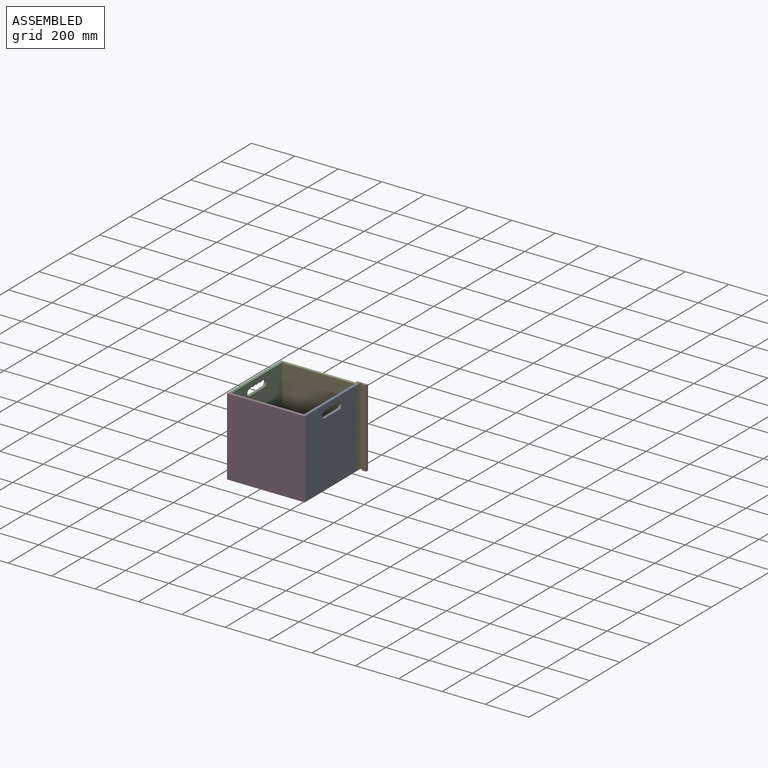
[diagram: assembled view]
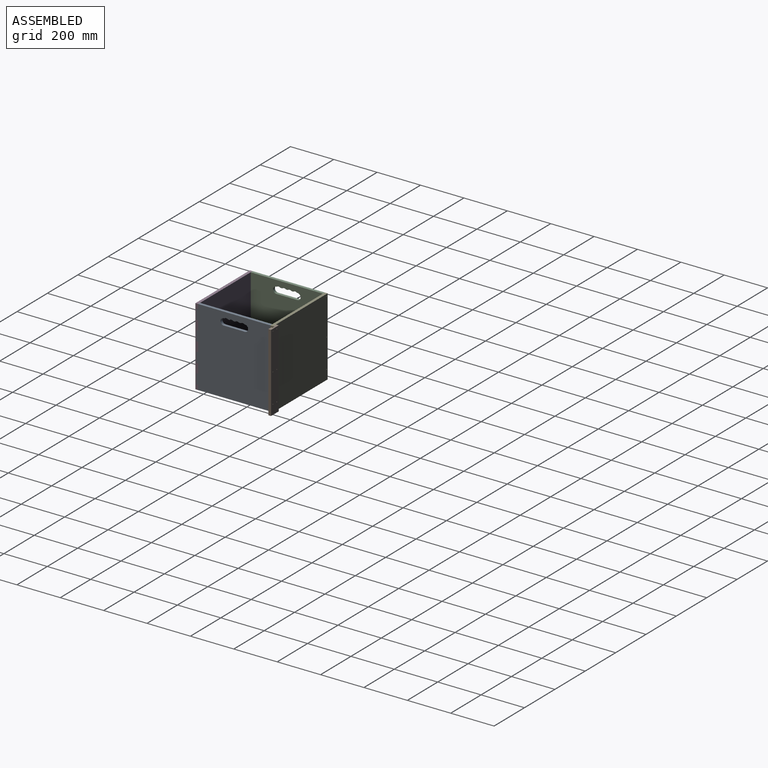
[diagram: assembled view, second angle]
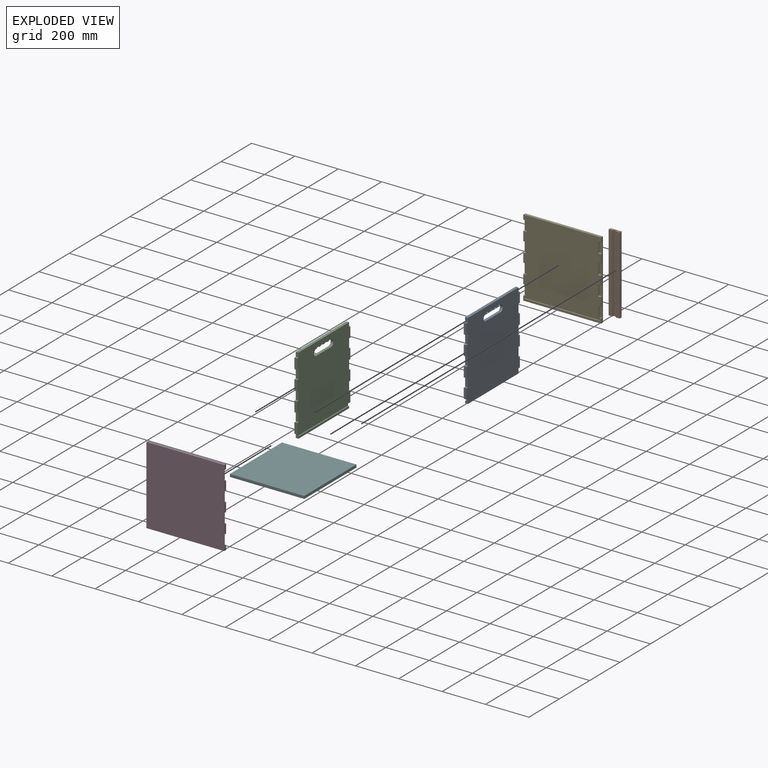
[diagram: exploded view]
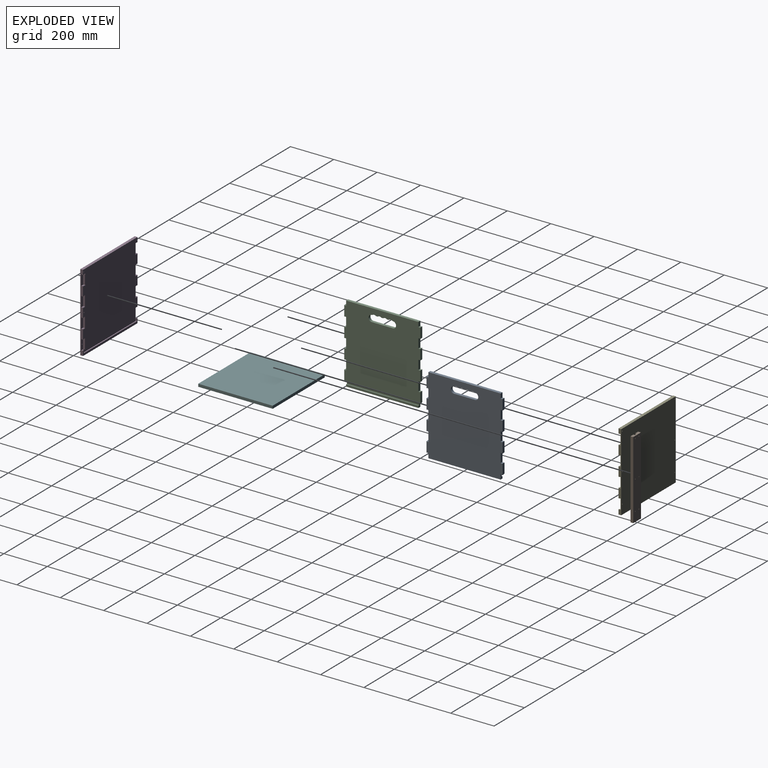
[diagram: exploded view, second angle]
ASSEMBLY  parts=6 mates=15
PART A: 70 faces, bbox 350.8x12.7x358.7 mm
  f0: plane 12.7x8.6mm, normal (0,0,-1), area 109.2mm2, adj f4,f5,f66,f69
  f1: plane 12.7x8.6mm, normal (0,0,-1), area 109.2mm2, adj f4,f5,f67,f68
  f2: plane 12.7x1.99mm, normal (0,0,-1), area 25.3mm2, adj f4,f5,f65,f67
  f3: plane 12.7x8.6mm, normal (0,0,-1), area 109.2mm2, adj f4,f5,f66,f68
  f4: plane 350.8x336.48mm, normal (0,-1,0), area 111596mm2, adj f0,f1,f2,f3,f6,f7,f12,f13
  f5: plane 358.7x350.8mm, normal (0,1,0), area 119010.6mm2, adj f0,f1,f2,f3,f6,f7,f8,f9
  f6: plane 47.65x12.7mm, normal (-1,0,0), area 599mm2, adj f4,f5,f8,f24,f60,f61
  f7: plane 47.65x12.7mm, normal (1,0,0), area 599mm2, adj f4,f5,f10,f46,f60,f61
  f8: plane 7.62x5.88mm, normal (0.16,0,-0.99), area 45.4mm2, adj f5,f6,f9,f61
  f9: cylinder r=2.6mm len=7.62mm, axis (0,-1,0), area 34.2mm2, adj f5,f8,f20,f61
  f10: plane 7.62x5.88mm, normal (-0.16,0,-0.99), area 45.4mm2, adj f5,f7,f11,f61
  f11: cylinder r=2.6mm len=7.62mm, axis (0,-1,0), area 34.2mm2, adj f5,f10,f44,f61
  f12: plane 333.02x12.7mm, normal (0,0,1), area 4229.3mm2, adj f4,f5,f13,f37
  f13: plane 19.37x12.7mm, normal (-1,0,0), area 246.1mm2, adj f4,f5,f12,f30
  f14: plane 47.65x12.7mm, normal (-1,0,0), area 605.2mm2, adj f4,f5,f23,f25
  f15: plane 38.75x12.7mm, normal (-1,0,0), area 492.1mm2, adj f4,f5,f31,f32
  f16: plane 47.65x12.7mm, normal (-1,0,0), area 605.2mm2, adj f4,f5,f28,f29
  f17: plane 38.75x12.7mm, normal (-1,0,0), area 492.1mm2, adj f4,f5,f33,f34
  f18: plane 47.65x12.7mm, normal (-1,0,0), area 605.2mm2, adj f4,f5,f26,f27
  f19: plane 38.75x12.7mm, normal (-1,0,0), area 492.1mm2, adj f4,f5,f35,f36
  f20: plane 19.37x12.7mm, normal (-1,0,0), area 196mm2, adj f5,f9,f21,f22,f59,f61
  f21: plane 333.02x12.7mm, normal (0,0,-1), area 4229.3mm2, adj f5,f20,f22,f44
  f22: plane 333.02x9.53mm, normal (0,-1,0), area 3172mm2, adj f20,f21,f44,f59
  f23: plane 12.7x5.88mm, normal (0.16,0,0.99), area 75.6mm2, adj f4,f5,f14,f30
  f24: plane 12.7x5.88mm, normal (0.16,0,0.99), area 75.6mm2, adj f4,f5,f6,f36
  f25: plane 12.7x5.88mm, normal (0.16,0,-0.99), area 75.6mm2, adj f4,f5,f14,f31
  f26: plane 12.7x5.88mm, normal (0.16,0,-0.99), area 75.6mm2, adj f4,f5,f18,f35
  f27: plane 12.7x5.88mm, normal (0.16,0,0.99), area 75.6mm2, adj f4,f5,f18,f34
  f28: plane 12.7x5.88mm, normal (0.16,0,-0.99), area 75.6mm2, adj f4,f5,f16,f33
  f29: plane 12.7x5.88mm, normal (0.16,0,0.99), area 75.6mm2, adj f4,f5,f16,f32
  f30: cylinder r=2.6mm len=12.7mm, axis (0,1,0), area 57.1mm2, adj f4,f5,f13,f23
  f31: cylinder r=2.6mm len=12.7mm, axis (0,-1,0), area 57.1mm2, adj f4,f5,f15,f25
  f32: cylinder r=2.6mm len=12.7mm, axis (0,-1,0), area 57.1mm2, adj f4,f5,f15,f29
  f33: cylinder r=2.6mm len=12.7mm, axis (0,-1,0), area 57.1mm2, adj f4,f5,f17,f28
  f34: cylinder r=2.6mm len=12.7mm, axis (0,1,0), area 57.1mm2, adj f4,f5,f17,f27
  f35: cylinder r=2.6mm len=12.7mm, axis (0,-1,0), area 57.1mm2, adj f4,f5,f19,f26
  f36: cylinder r=2.6mm len=12.7mm, axis (0,-1,0), area 57.1mm2, adj f4,f5,f19,f24
  f37: plane 19.37x12.7mm, normal (1,0,0), area 246.1mm2, adj f4,f5,f12,f52
  f38: plane 47.65x12.7mm, normal (1,0,0), area 605.2mm2, adj f4,f5,f45,f47
  f39: plane 38.75x12.7mm, normal (1,0,0), area 492.1mm2, adj f4,f5,f53,f54
  f40: plane 47.65x12.7mm, normal (1,0,0), area 605.2mm2, adj f4,f5,f50,f51
  f41: plane 38.75x12.7mm, normal (1,0,0), area 492.1mm2, adj f4,f5,f55,f56
  f42: plane 47.65x12.7mm, normal (1,0,0), area 605.2mm2, adj f4,f5,f48,f49
  f43: plane 38.75x12.7mm, normal (1,0,0), area 492.1mm2, adj f4,f5,f57,f58
  f44: plane 19.37x12.7mm, normal (1,0,0), area 196mm2, adj f5,f11,f21,f22,f59,f61
  f45: plane 12.7x5.88mm, normal (-0.16,0,0.99), area 75.6mm2, adj f4,f5,f38,f52
  f46: plane 12.7x5.88mm, normal (-0.16,0,0.99), area 75.6mm2, adj f4,f5,f7,f58
  f47: plane 12.7x5.88mm, normal (-0.16,0,-0.99), area 75.6mm2, adj f4,f5,f38,f53
  f48: plane 12.7x5.88mm, normal (-0.16,0,-0.99), area 75.6mm2, adj f4,f5,f42,f57
  f49: plane 12.7x5.88mm, normal (-0.16,0,0.99), area 75.6mm2, adj f4,f5,f42,f56
  f50: plane 12.7x5.88mm, normal (-0.16,0,-0.99), area 75.6mm2, adj f4,f5,f40,f55
  f51: plane 12.7x5.88mm, normal (-0.16,0,0.99), area 75.6mm2, adj f4,f5,f40,f54
  f52: cylinder r=2.6mm len=12.7mm, axis (0,1,0), area 57.1mm2, adj f4,f5,f37,f45
  f53: cylinder r=2.6mm len=12.7mm, axis (0,-1,0), area 57.1mm2, adj f4,f5,f39,f47
  f54: cylinder r=2.6mm len=12.7mm, axis (0,-1,0), area 57.1mm2, adj f4,f5,f39,f51
  f55: cylinder r=2.6mm len=12.7mm, axis (0,-1,0), area 57.1mm2, adj f4,f5,f41,f50
  f56: cylinder r=2.6mm len=12.7mm, axis (0,1,0), area 57.1mm2, adj f4,f5,f41,f49
  f57: cylinder r=2.6mm len=12.7mm, axis (0,-1,0), area 57.1mm2, adj f4,f5,f43,f48
  f58: cylinder r=2.6mm len=12.7mm, axis (0,-1,0), area 57.1mm2, adj f4,f5,f43,f46
  f59: plane 333.02x5.08mm, normal (0,0,1), area 1691.7mm2, adj f20,f22,f44,f61
  f60: plane 350.8x5.08mm, normal (0,0,-1), area 1782.1mm2, adj f4,f6,f7,f61
  f61: plane 350.8x12.7mm, normal (0,-1,0), area 4242.6mm2, adj f6,f7,f8,f9,f10,f11,f20,f44
  f62: plane 12.7x1.99mm, normal (0,0,-1), area 25.3mm2, adj f4,f5,f63,f69
  f63: cylinder r=15.01mm len=30.02mm, axis (0,-1,0), area 598.9mm2, adj f4,f5,f62,f64
  f64: plane 96.98x12.7mm, normal (0,0,1), area 1231.6mm2, adj f4,f5,f63,f65
  f65: cylinder r=15.01mm len=30.02mm, axis (0,-1,0), area 598.9mm2, adj f2,f4,f5,f64
  f66: cylinder r=12.7mm len=16.8mm, axis (0,-1,0), area 233.1mm2, adj f0,f3,f4,f5
  f67: cylinder r=12.7mm len=16.8mm, axis (0,-1,0), area 233.1mm2, adj f1,f2,f4,f5
  f68: cylinder r=12.7mm len=16.8mm, axis (0,-1,0), area 233.1mm2, adj f1,f3,f4,f5
  f69: cylinder r=12.7mm len=16.8mm, axis (0,-1,0), area 233.1mm2, adj f0,f4,f5,f62
PART B: 16 faces, bbox 50.8x12.7x358.7 mm
  f0: plane 358.7x19.05mm, normal (0,-1,0), area 6809.5mm2, adj f1,f2,f3,f7,f13,f14,f15
  f1: plane 50.8x12.7mm, normal (0,0,-1), area 564.5mm2, adj f0,f2,f4,f5,f6,f7,f8,f9
  f2: plane 358.7x12.7mm, normal (1,0,0), area 4555.5mm2, adj f0,f1,f3,f6
  f3: plane 50.8x12.7mm, normal (0,0,1), area 564.5mm2, adj f0,f2,f4,f5,f6,f7,f8,f9
  f4: plane 358.7x12.7mm, normal (-1,0,0), area 4555.5mm2, adj f1,f3,f5,f6
  f5: plane 358.7x19.05mm, normal (0,-1,0), area 6809.5mm2, adj f1,f3,f4,f8,f10,f11,f12
  f6: plane 358.7x50.8mm, normal (0,1,0), area 18174.4mm2, adj f1,f2,f3,f4,f10,f11,f12,f13
  f7: plane 358.7x6.35mm, normal (-1,0,0), area 2277.7mm2, adj f0,f1,f3,f9
  f8: plane 358.7x6.35mm, normal (1,0,0), area 2277.7mm2, adj f1,f3,f5,f9
  f9: plane 358.7x12.7mm, normal (0,-1,0), area 4555.5mm2, adj f1,f3,f7,f8
  f10: cylinder r=1.59mm len=12.7mm, axis (0,-1,0), area 126.7mm2, adj f5,f6
  f11: cylinder r=1.59mm len=12.7mm, axis (0,-1,0), area 126.7mm2, adj f5,f6
  f12: cylinder r=1.59mm len=12.7mm, axis (0,-1,0), area 126.7mm2, adj f5,f6
  f13: cylinder r=1.59mm len=12.7mm, axis (0,-1,0), area 126.7mm2, adj f0,f6
  f14: cylinder r=1.59mm len=12.7mm, axis (0,-1,0), area 126.7mm2, adj f0,f6
  f15: cylinder r=1.59mm len=12.7mm, axis (0,-1,0), area 126.7mm2, adj f0,f6
PART C: same geometry as A
PART D: 72 faces, bbox 358.7x12.7x358.7 mm
  f0: plane 358.7x336.47mm, normal (0,1,0), area 115553.4mm2, adj f1,f2,f3,f7,f8,f9,f17,f18
  f1: plane 42.61x8.89mm, normal (1,0,0), area 378.8mm2, adj f0,f48,f70,f71
  f2: plane 0.97x0.19mm, normal (1,0,0), area 0.1mm2, adj f0,f53,f71
  f3: plane 49.28x8.89mm, normal (-1,0,0), area 412.1mm2, adj f0,f5,f12,f13,f17,f57,f61
  f4: plane 358.7x19.39mm, normal (0,1,0), area 3521.1mm2, adj f6,f9,f10,f21,f31,f58,f59,f60
  f5: plane 12.7x5.89mm, normal (0,-0.16,0.99), area 59.7mm2, adj f3,f6,f9,f12,f60,f61
  f6: cylinder r=2.59mm len=5.08mm, axis (-1,0,0), area 22.7mm2, adj f4,f5,f9,f60
  f7: plane 49.28x8.89mm, normal (1,0,0), area 412.1mm2, adj f0,f22,f23,f24,f28,f57,f61
  f8: plane 50.9x8.89mm, normal (-1,0,0), area 415.2mm2, adj f0,f14,f15,f16,f18,f19
  f9: plane 358.7x12.7mm, normal (-1,0,0), area 2894.5mm2, adj f0,f4,f5,f6,f10,f11,f12,f13
  f10: plane 358.7x12.7mm, normal (0,0,-1), area 4555.5mm2, adj f4,f9,f11,f21
  f11: plane 358.7x358.7mm, normal (0,-1,0), area 128617.3mm2, adj f9,f10,f21,f33,f64,f65,f66,f67
  f12: plane 47.65x12.7mm, normal (0,1,0), area 597.3mm2, adj f3,f5,f9,f13,f67
  f13: plane 12.7x5.89mm, normal (0,-0.16,-0.99), area 75.8mm2, adj f3,f9,f12,f17
  f14: plane 12.7x5.89mm, normal (0,-0.16,0.99), area 75.8mm2, adj f8,f9,f15,f18
  f15: plane 47.65x12.7mm, normal (0,1,0), area 605.2mm2, adj f8,f9,f14,f16
  f16: plane 12.7x5.89mm, normal (0,-0.16,-0.99), area 75.8mm2, adj f8,f9,f15,f19
  f17: cylinder r=2.59mm len=12.7mm, axis (1,0,0), area 56.9mm2, adj f0,f3,f9,f13
  f18: cylinder r=2.59mm len=12.7mm, axis (1,0,0), area 56.9mm2, adj f0,f8,f9,f14
  f19: cylinder r=2.59mm len=12.7mm, axis (-1,0,0), area 56.9mm2, adj f0,f8,f9,f16
  f20: plane 50.9x8.89mm, normal (1,0,0), area 415.2mm2, adj f0,f25,f26,f27,f29,f30
  f21: plane 358.7x12.7mm, normal (1,0,0), area 2894.5mm2, adj f0,f4,f10,f11,f22,f23,f24,f25
  f22: plane 12.7x5.89mm, normal (0,-0.16,0.99), area 59.7mm2, adj f7,f21,f23,f31,f58,f61
  f23: plane 47.65x12.7mm, normal (0,1,0), area 597.3mm2, adj f7,f21,f22,f24,f64
  f24: plane 12.7x5.89mm, normal (0,-0.16,-0.99), area 75.8mm2, adj f7,f21,f23,f28
  f25: plane 12.7x5.89mm, normal (0,-0.16,0.99), area 75.8mm2, adj f20,f21,f26,f29
  f26: plane 47.65x12.7mm, normal (0,1,0), area 605.2mm2, adj f20,f21,f25,f27
  f27: plane 12.7x5.89mm, normal (0,-0.16,-0.99), area 75.8mm2, adj f20,f21,f26,f30
  f28: cylinder r=2.59mm len=12.7mm, axis (-1,0,0), area 56.9mm2, adj f0,f7,f21,f24
  f29: cylinder r=2.59mm len=12.7mm, axis (-1,0,0), area 56.9mm2, adj f0,f20,f21,f25
  f30: cylinder r=2.59mm len=12.7mm, axis (1,0,0), area 56.9mm2, adj f0,f20,f21,f27
  f31: cylinder r=2.59mm len=5.08mm, axis (1,0,0), area 22.7mm2, adj f4,f21,f22,f58
  f32: plane 50.9x8.89mm, normal (-1,0,0), area 415.2mm2, adj f0,f38,f39,f40,f42,f43
  f33: plane 358.7x12.7mm, normal (0,0,1), area 4555.5mm2, adj f0,f9,f11,f21
  f34: plane 50.9x8.89mm, normal (-1,0,0), area 415.2mm2, adj f0,f35,f36,f37,f41,f44
  f35: plane 12.7x5.89mm, normal (0,-0.16,-0.99), area 75.8mm2, adj f9,f34,f36,f44
  f36: plane 47.65x12.7mm, normal (0,1,0), area 605.2mm2, adj f9,f34,f35,f37
  f37: plane 12.7x5.89mm, normal (0,-0.16,0.99), area 75.8mm2, adj f9,f34,f36,f41
  f38: plane 12.7x5.89mm, normal (0,-0.16,-0.99), area 75.8mm2, adj f9,f32,f39,f42
  f39: plane 47.65x12.7mm, normal (0,1,0), area 605.2mm2, adj f9,f32,f38,f40
  f40: plane 12.7x5.89mm, normal (0,-0.16,0.99), area 75.8mm2, adj f9,f32,f39,f43
  f41: cylinder r=2.59mm len=12.7mm, axis (1,0,0), area 56.9mm2, adj f0,f9,f34,f37
  f42: cylinder r=2.59mm len=12.7mm, axis (1,0,0), area 56.9mm2, adj f0,f9,f32,f38
  f43: cylinder r=2.59mm len=12.7mm, axis (-1,0,0), area 56.9mm2, adj f0,f9,f32,f40
  f44: cylinder r=2.59mm len=12.7mm, axis (-1,0,0), area 56.9mm2, adj f0,f9,f34,f35
  f45: plane 50.9x8.89mm, normal (1,0,0), area 415.2mm2, adj f0,f50,f51,f52,f54,f55
  f46: plane 0.97x0.19mm, normal (1,0,0), area 0.1mm2, adj f0,f56,f70
  f47: plane 11.42x5.89mm, normal (0,-0.16,-0.99), area 66.9mm2, adj f21,f48,f56,f70
  f48: plane 48.96x14.29mm, normal (0,1,0), area 614.3mm2, adj f1,f21,f47,f49,f70,f71
  f49: plane 11.42x5.89mm, normal (0,-0.16,0.99), area 66.9mm2, adj f21,f48,f53,f71
  f50: plane 12.7x5.89mm, normal (0,-0.16,-0.99), area 75.8mm2, adj f21,f45,f51,f54
  f51: plane 47.65x12.7mm, normal (0,1,0), area 605.2mm2, adj f21,f45,f50,f52
  f52: plane 12.7x5.89mm, normal (0,-0.16,0.99), area 75.8mm2, adj f21,f45,f51,f55
  f53: cylinder r=2.59mm len=12.7mm, axis (-1,0,0), area 52mm2, adj f0,f2,f21,f49,f71
  f54: cylinder r=2.59mm len=12.7mm, axis (-1,0,0), area 56.9mm2, adj f0,f21,f45,f50
  f55: cylinder r=2.59mm len=12.7mm, axis (1,0,0), area 56.9mm2, adj f0,f21,f45,f52
  f56: cylinder r=2.59mm len=12.7mm, axis (1,0,0), area 52mm2, adj f0,f21,f46,f47,f70
  f57: plane 333.3x5.08mm, normal (0,0,-1), area 1693.2mm2, adj f0,f3,f7,f61
  f58: plane 9.28x5.08mm, normal (-1,0,0), area 45.3mm2, adj f4,f22,f31,f61,f62
  f59: plane 342.19x5.08mm, normal (0,0,1), area 1738.3mm2, adj f4,f61,f62,f63
  f60: plane 9.28x5.08mm, normal (1,0,0), area 45.3mm2, adj f4,f5,f6,f61,f63
  f61: plane 348.54x12.7mm, normal (0,1,0), area 4412.8mm2, adj f3,f5,f7,f22,f57,f58,f59,f60
  f62: cylinder r=3.17mm len=5.08mm, axis (0,-1,0), area 25.3mm2, adj f4,f58,f59,f61
  f63: cylinder r=3.17mm len=5.08mm, axis (0,1,0), area 25.3mm2, adj f4,f59,f60,f61
  f64: cylinder r=1.59mm len=3.81mm, axis (0,1,0), area 38mm2, adj f11,f23
  f65: cylinder r=1.59mm len=12.7mm, axis (0,1,0), area 126.7mm2, adj f0,f11
  f66: cylinder r=1.59mm len=12.7mm, axis (0,1,0), area 126.7mm2, adj f0,f11
  f67: cylinder r=1.59mm len=3.81mm, axis (0,1,0), area 38mm2, adj f11,f12
  f68: cylinder r=1.59mm len=12.7mm, axis (0,1,0), area 126.7mm2, adj f0,f11
  f69: cylinder r=1.59mm len=12.7mm, axis (0,1,0), area 126.7mm2, adj f0,f11
  f70: cylinder r=1.59mm len=8.89mm, axis (0,1,0), area 62.1mm2, adj f0,f1,f46,f47,f48,f56
  f71: cylinder r=1.59mm len=8.89mm, axis (0,1,0), area 62.1mm2, adj f0,f1,f2,f48,f49,f53
PART E: same geometry as D
PART F: 6 faces, bbox 343.2x12.7x343.2 mm
  f0: plane 343.15x12.7mm, normal (0,0,-1), area 4358.1mm2, adj f1,f3,f4,f5
  f1: plane 343.15x12.7mm, normal (1,0,0), area 4358.1mm2, adj f0,f2,f4,f5
  f2: plane 343.15x12.7mm, normal (0,0,1), area 4358.1mm2, adj f1,f3,f4,f5
  f3: plane 343.15x12.7mm, normal (-1,0,0), area 4358.1mm2, adj f0,f2,f4,f5
  f4: plane 343.15x343.15mm, normal (0,-1,0), area 117754.7mm2, adj f0,f1,f2,f3
  f5: plane 343.15x343.15mm, normal (0,1,0), area 117754.7mm2, adj f0,f1,f2,f3
PLACE A rot(axis=(0,0,-1),90deg) t=(462.1,351.89,-365.29)mm
PLACE B t=(468.45,377.29,-185.94)mm
PLACE C rot(axis=(0,0,1),90deg) t=(103.4,18.87,-365.29)mm
PLACE D t=(103.4,18.87,-365.29)mm
PLACE E rot(axis=(0,0,-1),180deg) t=(462.1,351.89,-365.29)mm
PLACE F rot(axis=(-1,0,0),90deg) t=(282.91,185.39,-355.76)mm
MATE planar E.f61 <-> F.f2  axis (0,-1,0) through (282.75,356.97,-349.42)mm
MATE planar E.f0 <-> A.f13  axis (0,-1,0) through (462.1,351.89,-6.59)mm
MATE planar B.f5 <-> E.f11  axis (0,-1,0) through (452.57,364.59,-185.98)mm
MATE planar F.f5 <-> D.f59  axis (0,0,-1) through (282.91,185.39,-355.76)mm
MATE planar A.f37 <-> D.f4  axis (0,-1,0) through (455.75,18.87,-16.28)mm
MATE planar C.f12 <-> E.f33  axis (0,0,1) through (109.75,185.38,-6.59)mm
MATE planar F.f1 <-> A.f61  axis (1,0,0) through (454.48,185.39,-349.41)mm
MATE planar C.f13 <-> D.f4  axis (0,-1,0) through (116.1,18.87,-16.28)mm
MATE planar A.f12 <-> D.f33  axis (0,0,1) through (455.75,185.38,-6.59)mm
MATE planar D.f33 <-> C.f12  axis (0,0,1) through (282.75,12.52,-6.59)mm
MATE planar B.f8 <-> E.f9  axis (1,0,0) through (462.1,367.76,-185.94)mm
MATE planar E.f9 <-> A.f5  axis (1,0,0) through (462.1,360.78,-75.25)mm
MATE planar B.f3 <-> E.f33  axis (0,0,1) through (468.45,371.39,-6.59)mm
MATE planar A.f4 <-> D.f46  axis (-1,0,0) through (449.4,15.86,-28.53)mm
MATE planar D.f9 <-> C.f5  axis (-1,0,0) through (103.4,11.43,-185.94)mm
